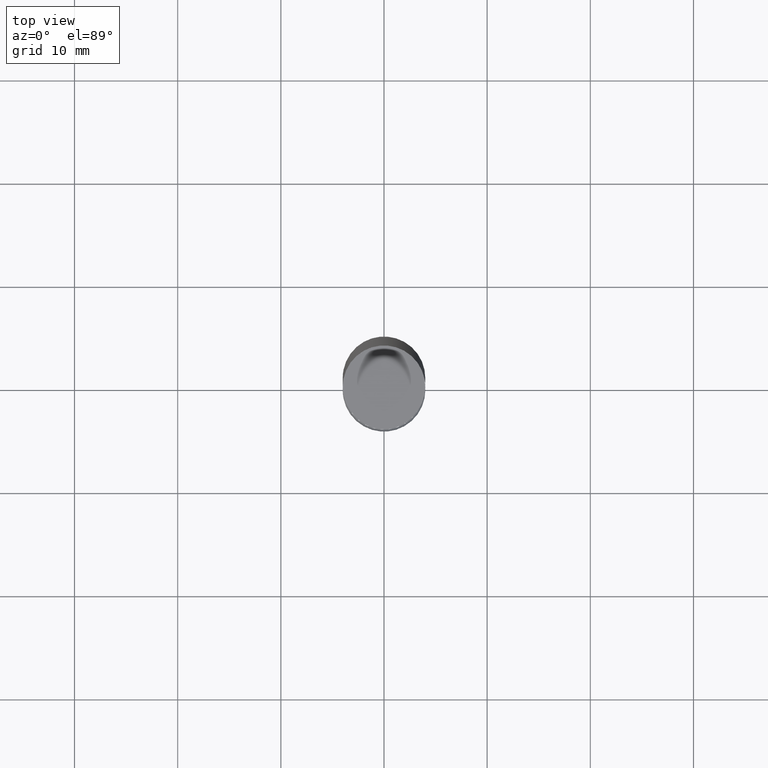
[diagram: clean part render]
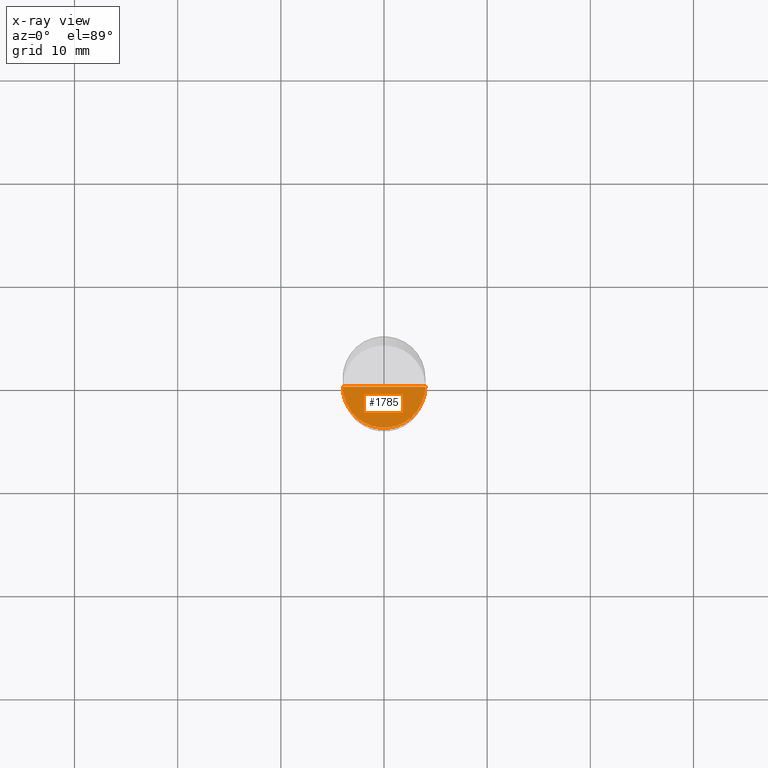
[diagram: x-ray — body ghosted, one internal face saturated and labeled with its STEP entity id]
A machine part, top view, then the same camera in x-ray: the body is ghosted and one INTERNAL B-rep face — a face not visible from any outside direction — is saturated and labeled: STEP entity #1785.
In plain terms, the highlighted face is a freeform B-spline surface patch.
Its self-contained STEP definition (entity closure, byte-faithful):
#1592=CARTESIAN_POINT('',(4.0,0.0,0.0));
#1596=CARTESIAN_POINT('',(-4.0,0.0,0.0));
#1597=CARTESIAN_POINT('',(0.0,0.0,0.0));
#1613=CARTESIAN_POINT('',(-4.0,-4.0,0.0));
#1614=CARTESIAN_POINT('',(0.0,-4.0,0.0));
#1615=CARTESIAN_POINT('',(4.0,-4.0,0.0));
#1770=(
BOUNDED_SURFACE()
B_SPLINE_SURFACE(1,2,(
(#1596,#1613,#1614,#1615,#1592),
(#1597,#1597,#1597,#1597,#1597)
), .UNSPECIFIED.,.F.,.F.,.F.)
B_SPLINE_SURFACE_WITH_KNOTS((2,2),(3,2,3),(
0.0,1.0),(
0.0,0.5,1.0), .UNSPECIFIED.)
GEOMETRIC_REPRESENTATION_ITEM()
RATIONAL_B_SPLINE_SURFACE(((1.0,0.707106781187,1.0,0.707106781187,1.0),
(1.0,0.707106781187,1.0,0.707106781187,1.0)
))
REPRESENTATION_ITEM('')
SURFACE()
);
#1771=(
BOUNDED_CURVE()
B_SPLINE_CURVE(1,(#1597,#1592),.UNSPECIFIED.,.F.,.F.)
B_SPLINE_CURVE_WITH_KNOTS((2,2),
(0.0,1.0),.UNSPECIFIED.)
CURVE()
GEOMETRIC_REPRESENTATION_ITEM()
RATIONAL_B_SPLINE_CURVE((1.0,1.0))
REPRESENTATION_ITEM('')
);
#1772=(
BOUNDED_CURVE()
B_SPLINE_CURVE(2,(#1592,#1615,#1614,#1613,#1596),.UNSPECIFIED.,.F.,.F.)
B_SPLINE_CURVE_WITH_KNOTS((3,2,3),
(0.0,0.5,1.0),.UNSPECIFIED.)
CURVE()
GEOMETRIC_REPRESENTATION_ITEM()
RATIONAL_B_SPLINE_CURVE((1.0,0.707106781187,1.0,0.707106781187,1.0))
REPRESENTATION_ITEM('')
);
#1773=(
BOUNDED_CURVE()
B_SPLINE_CURVE(1,(#1596,#1597),.UNSPECIFIED.,.F.,.F.)
B_SPLINE_CURVE_WITH_KNOTS((2,2),
(0.0,1.0),.UNSPECIFIED.)
CURVE()
GEOMETRIC_REPRESENTATION_ITEM()
RATIONAL_B_SPLINE_CURVE((1.0,1.0))
REPRESENTATION_ITEM('')
);
#1774=VERTEX_POINT('',#1592);
#1775=VERTEX_POINT('',#1596);
#1776=VERTEX_POINT('',#1597);
#1777=EDGE_CURVE('',#1776,#1774,#1771,.T.);
#1778=EDGE_CURVE('',#1774,#1775,#1772,.T.);
#1779=EDGE_CURVE('',#1775,#1776,#1773,.T.);
#1780=ORIENTED_EDGE('',*,*,#1777,.T.);
#1781=ORIENTED_EDGE('',*,*,#1778,.T.);
#1782=ORIENTED_EDGE('',*,*,#1779,.T.);
#1783=EDGE_LOOP('',(#1780,#1781,#1782));
#1784=FACE_OUTER_BOUND('',#1783,.T.);
#1785=ADVANCED_FACE('',(#1784),#1770,.T.);